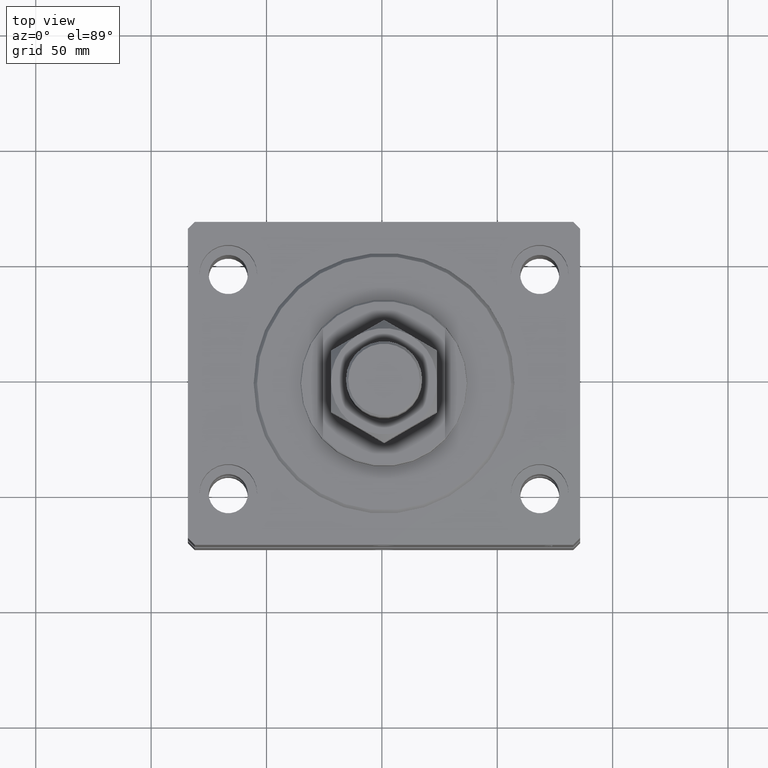
[diagram: clean part render]
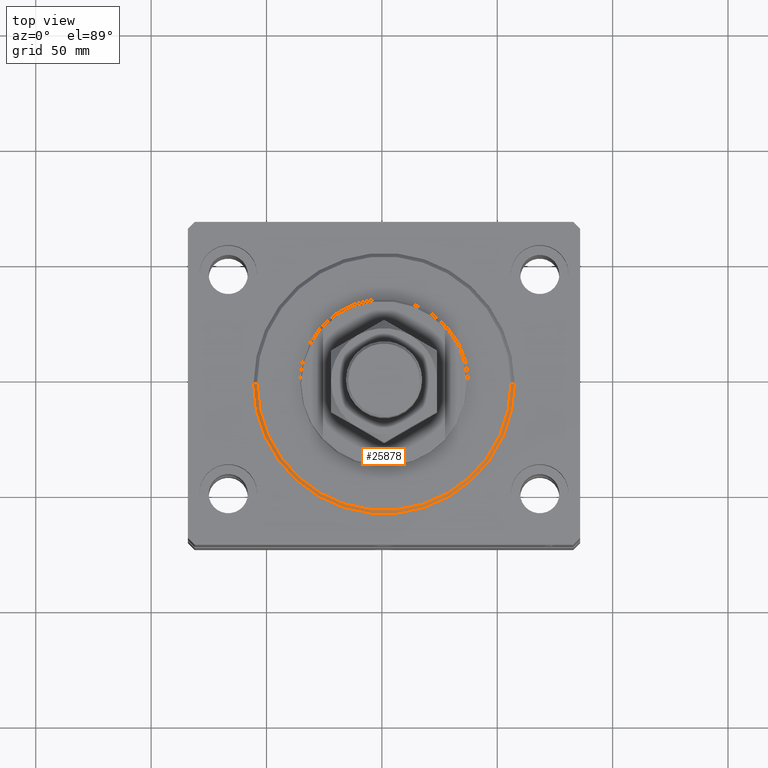
[diagram: same view with one face highlighted and labeled with its STEP entity id]
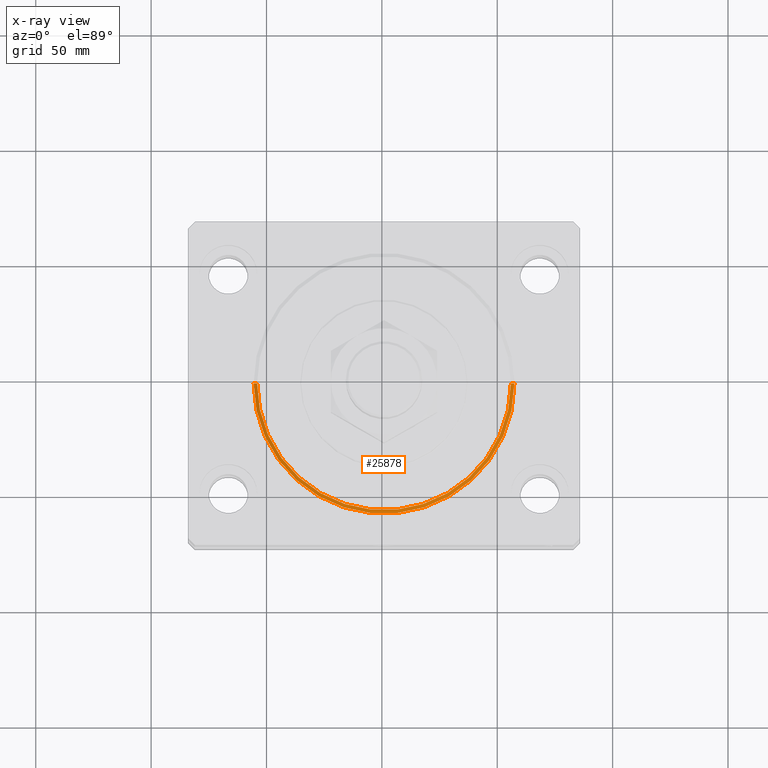
[diagram: x-ray of the same camera — body ghosted, the highlighted face saturated]
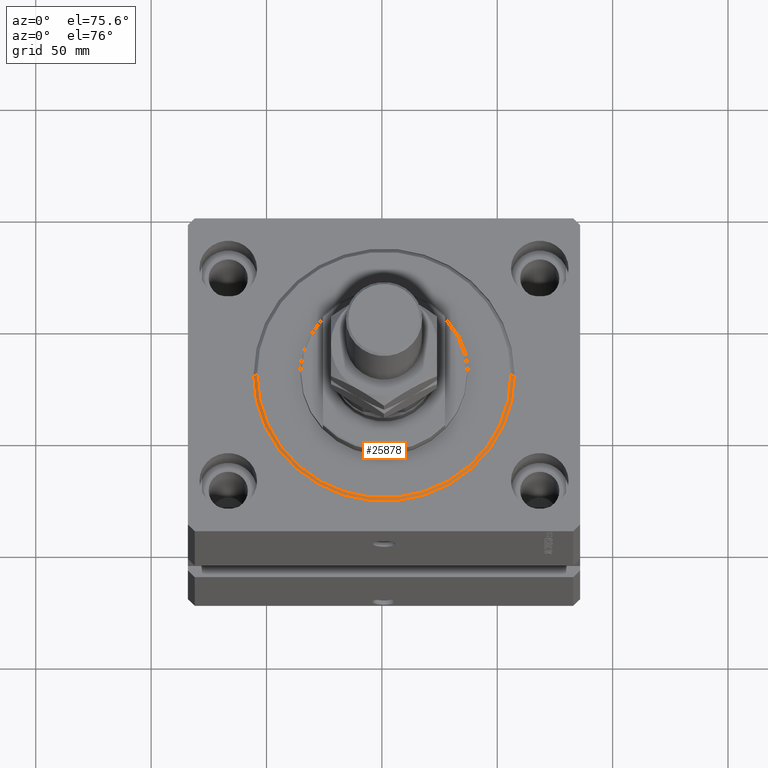
[diagram: same view with one face highlighted and labeled with its STEP entity id]
A machine part, top view. The second image highlights one B-rep face of the part: STEP entity #25878.
The next image is the same camera in x-ray: the body ghosted, the highlighted face saturated — about 0% of this face is hidden behind the body in this view.
A second angle (auxiliary view) of the same face is appended — the face is thin or edge-on in the first view.
In plain terms, the highlighted conical surface has half-angle 45 deg.
Its self-contained STEP definition (entity closure, byte-faithful):
#1462 = VERTEX_POINT ( 'NONE', #24206 ) ;
#1806 = EDGE_CURVE ( 'NONE', #17004, #38784, #8199, .T. ) ;
#2502 = EDGE_CURVE ( 'NONE', #38784, #44124, #40937, .T. ) ;
#3888 = CARTESIAN_POINT ( 'NONE',  ( 0.000000000000000000, 0.000000000000000000, 1.499999999999994449 ) ) ;
#5140 = EDGE_LOOP ( 'NONE', ( #10338, #6430, #8013, #19636 ) ) ;
#6332 = CIRCLE ( 'NONE', #28501, 56.50000000000000711 ) ;
#6430 = ORIENTED_EDGE ( 'NONE', *, *, #1806, .F. ) ;
#7253 = CARTESIAN_POINT ( 'NONE',  ( 56.50000000000000711, 0.000000000000000000, 1.499999999999994449 ) ) ;
#8013 = ORIENTED_EDGE ( 'NONE', *, *, #45205, .T. ) ;
#8199 = CIRCLE ( 'NONE', #14354, 55.00000000000002132 ) ;
#10338 = ORIENTED_EDGE ( 'NONE', *, *, #2502, .F. ) ;
#12870 = VECTOR ( 'NONE', #29682, 1000.000000000000000 ) ;
#14229 = DIRECTION ( 'NONE',  ( 1.000000000000000000, 0.000000000000000000, 0.000000000000000000 ) ) ;
#14354 = AXIS2_PLACEMENT_3D ( 'NONE', #31342, #45941, #30632 ) ;
#14485 = CARTESIAN_POINT ( 'NONE',  ( -55.00000000000002132, 6.827405905246496343E-15, 0.000000000000000000 ) ) ;
#17004 = VERTEX_POINT ( 'NONE', #25280 ) ;
#17294 = DIRECTION ( 'NONE',  ( -0.000000000000000000, -0.000000000000000000, 1.000000000000000000 ) ) ;
#19636 = ORIENTED_EDGE ( 'NONE', *, *, #29924, .F. ) ;
#19960 = CONICAL_SURFACE ( 'NONE', #46728, 56.50000000000000711, 0.7853981633974460586 ) ;
#21878 = DIRECTION ( 'NONE',  ( 0.7071067811865459074, 0.000000000000000000, 0.7071067811865491270 ) ) ;
#23523 = CARTESIAN_POINT ( 'NONE',  ( 0.000000000000000000, 0.000000000000000000, 1.499999999999994449 ) ) ;
#24206 = CARTESIAN_POINT ( 'NONE',  ( 56.50000000000000711, 6.919254415182546126E-15, 1.499999999999994449 ) ) ;
#25280 = CARTESIAN_POINT ( 'NONE',  ( 55.00000000000002132, 0.000000000000000000, 0.000000000000000000 ) ) ;
#25878 = ADVANCED_FACE ( 'NONE', ( #36260 ), #19960, .T. ) ;
#28501 = AXIS2_PLACEMENT_3D ( 'NONE', #23523, #17294, #42197 ) ;
#29682 = DIRECTION ( 'NONE',  ( -0.7071067811865459074, 8.659560562354911904E-17, 0.7071067811865491270 ) ) ;
#29924 = EDGE_CURVE ( 'NONE', #44124, #1462, #6332, .T. ) ;
#30632 = DIRECTION ( 'NONE',  ( 1.000000000000000000, 0.000000000000000000, 0.000000000000000000 ) ) ;
#31342 = CARTESIAN_POINT ( 'NONE',  ( 0.000000000000000000, 0.000000000000000000, 0.000000000000000000 ) ) ;
#36260 = FACE_OUTER_BOUND ( 'NONE', #5140, .T. ) ;
#36710 = DIRECTION ( 'NONE',  ( -0.000000000000000000, -0.000000000000000000, 1.000000000000000000 ) ) ;
#37583 = CARTESIAN_POINT ( 'NONE',  ( -56.50000000000000711, 6.919254415182546126E-15, 1.499999999999994449 ) ) ;
#38784 = VERTEX_POINT ( 'NONE', #14485 ) ;
#40072 = LINE ( 'NONE', #7253, #42645 ) ;
#40937 = LINE ( 'NONE', #37583, #12870 ) ;
#42197 = DIRECTION ( 'NONE',  ( 1.000000000000000000, 0.000000000000000000, 0.000000000000000000 ) ) ;
#42645 = VECTOR ( 'NONE', #21878, 1000.000000000000000 ) ;
#43190 = CARTESIAN_POINT ( 'NONE',  ( -56.50000000000000711, 0.000000000000000000, 1.499999999999994449 ) ) ;
#44124 = VERTEX_POINT ( 'NONE', #43190 ) ;
#45205 = EDGE_CURVE ( 'NONE', #17004, #1462, #40072, .T. ) ;
#45941 = DIRECTION ( 'NONE',  ( -0.000000000000000000, -0.000000000000000000, -1.000000000000000000 ) ) ;
#46728 = AXIS2_PLACEMENT_3D ( 'NONE', #3888, #36710, #14229 ) ;